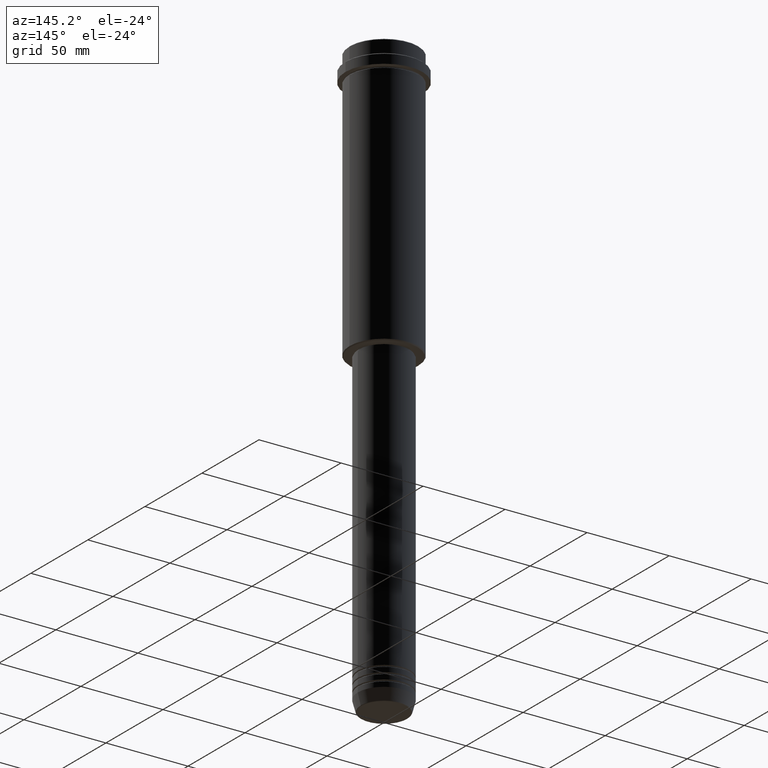
[diagram: clean part render]
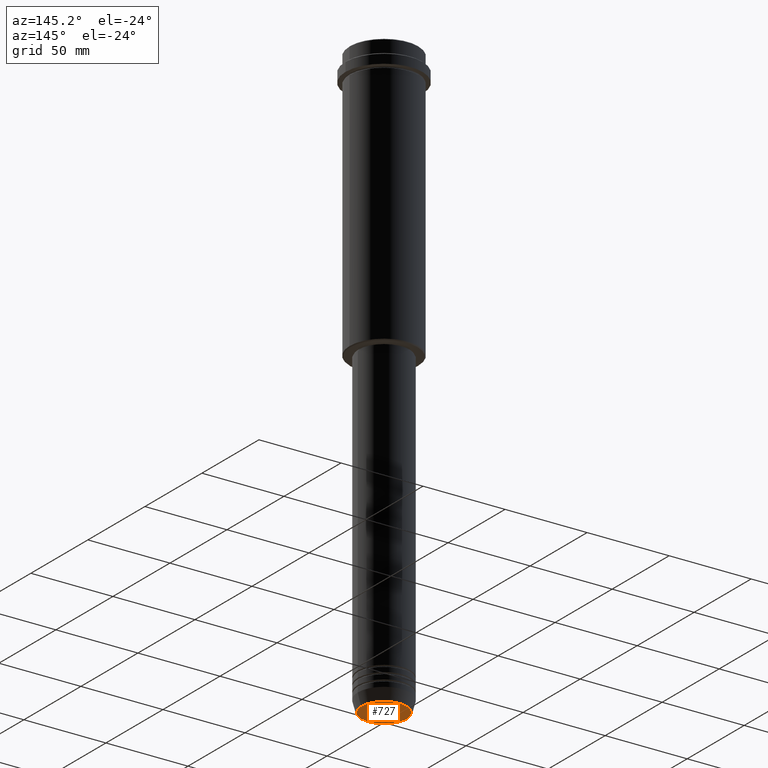
[diagram: same view with one face highlighted and labeled with its STEP entity id]
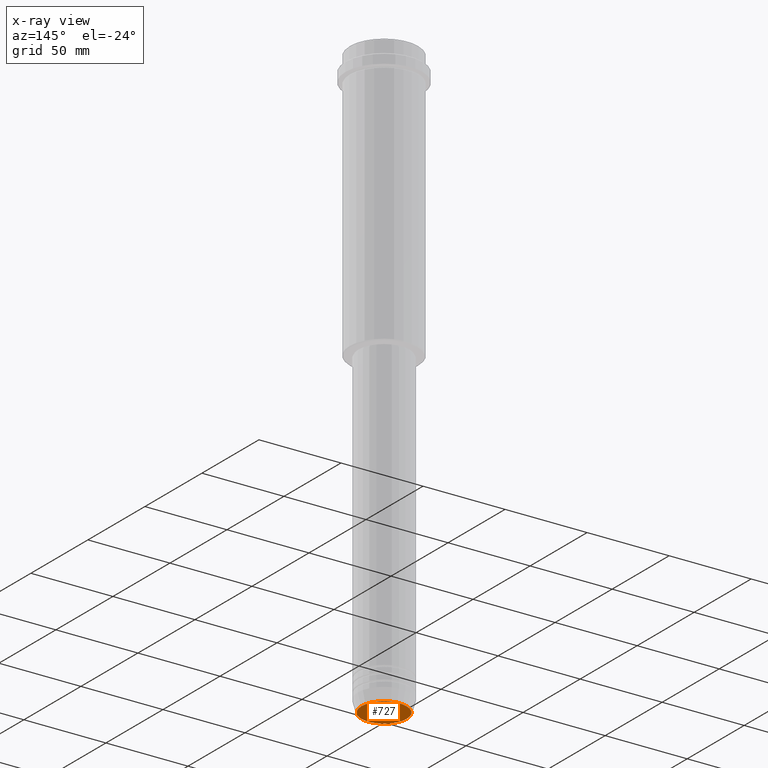
[diagram: x-ray of the same camera — body ghosted, the highlighted face saturated]
A machine part, auxiliary view. The second image highlights one B-rep face of the part: STEP entity #727.
The next image is the same camera in x-ray: the body ghosted, the highlighted face saturated — about 0% of this face is hidden behind the body in this view.
In plain terms, the highlighted planar face has unit normal (0, -0, 1).
Its self-contained STEP definition (entity closure, byte-faithful):
#12 = PLANE ( 'NONE',  #1177 ) ;
#72 = DIRECTION ( 'NONE',  ( 1.000000000000000000, 0.000000000000000000, 0.000000000000000000 ) ) ;
#187 = CARTESIAN_POINT ( 'NONE',  ( 13.74069215899265828, 0.000000000000000000, -360.0000000000000568 ) ) ;
#224 = EDGE_LOOP ( 'NONE', ( #955, #338 ) ) ;
#265 = CARTESIAN_POINT ( 'NONE',  ( 0.000000000000000000, 0.000000000000000000, -360.0000000000000568 ) ) ;
#286 = DIRECTION ( 'NONE',  ( 1.000000000000000000, 0.000000000000000000, 0.000000000000000000 ) ) ;
#338 = ORIENTED_EDGE ( 'NONE', *, *, #710, .T. ) ;
#558 = CARTESIAN_POINT ( 'NONE',  ( -13.74069215899265828, 1.712322416342415986E-15, -360.0000000000000568 ) ) ;
#620 = CARTESIAN_POINT ( 'NONE',  ( 0.000000000000000000, 0.000000000000000000, -360.0000000000000568 ) ) ;
#647 = DIRECTION ( 'NONE',  ( 1.000000000000000000, 0.000000000000000000, 0.000000000000000000 ) ) ;
#667 = CIRCLE ( 'NONE', #1334, 13.74069215899265828 ) ;
#710 = EDGE_CURVE ( 'NONE', #1015, #1251, #667, .T. ) ;
#722 = DIRECTION ( 'NONE',  ( 0.000000000000000000, 0.000000000000000000, -1.000000000000000000 ) ) ;
#727 = ADVANCED_FACE ( 'NONE', ( #992 ), #12, .F. ) ;
#816 = DIRECTION ( 'NONE',  ( 0.000000000000000000, 0.000000000000000000, -1.000000000000000000 ) ) ;
#899 = CIRCLE ( 'NONE', #1109, 13.74069215899265828 ) ;
#955 = ORIENTED_EDGE ( 'NONE', *, *, #1222, .T. ) ;
#992 = FACE_OUTER_BOUND ( 'NONE', #224, .T. ) ;
#1015 = VERTEX_POINT ( 'NONE', #558 ) ;
#1062 = DIRECTION ( 'NONE',  ( 0.000000000000000000, -0.000000000000000000, 1.000000000000000000 ) ) ;
#1109 = AXIS2_PLACEMENT_3D ( 'NONE', #1363, #816, #286 ) ;
#1177 = AXIS2_PLACEMENT_3D ( 'NONE', #620, #1062, #647 ) ;
#1222 = EDGE_CURVE ( 'NONE', #1251, #1015, #899, .T. ) ;
#1251 = VERTEX_POINT ( 'NONE', #187 ) ;
#1334 = AXIS2_PLACEMENT_3D ( 'NONE', #265, #722, #72 ) ;
#1363 = CARTESIAN_POINT ( 'NONE',  ( 0.000000000000000000, 0.000000000000000000, -360.0000000000000568 ) ) ;